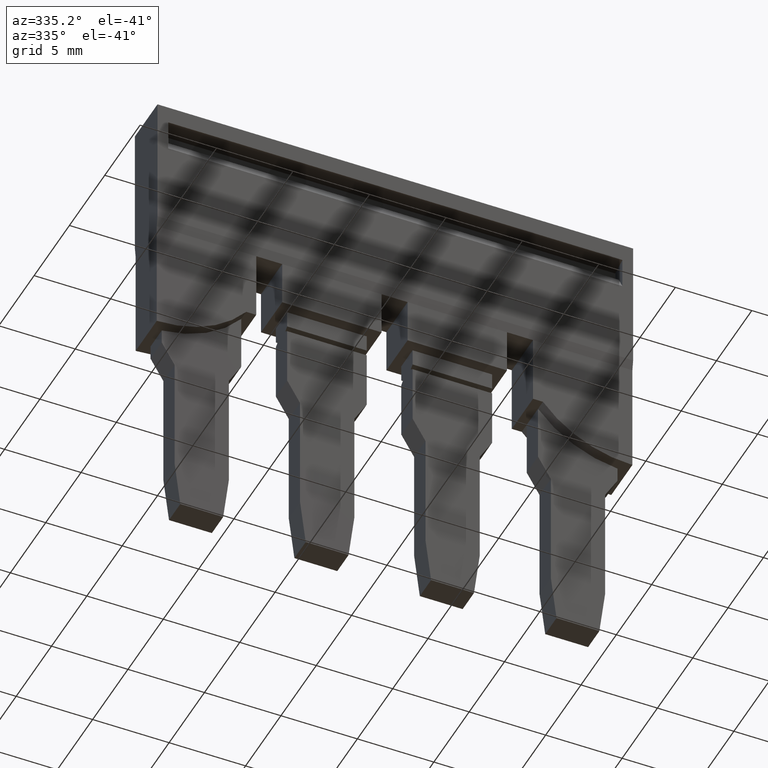
[diagram: clean part render]
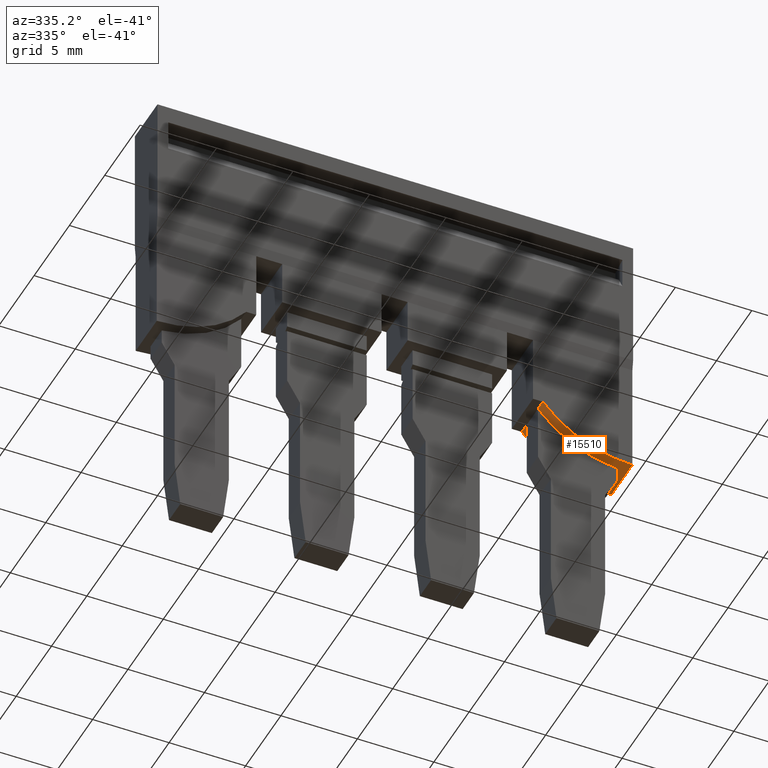
[diagram: same view with one face highlighted and labeled with its STEP entity id]
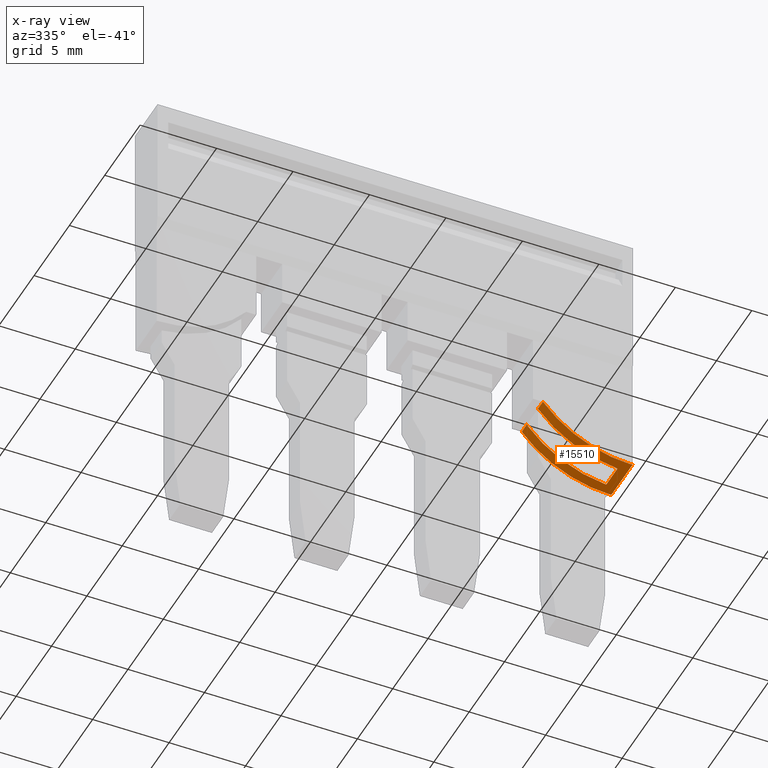
[diagram: x-ray of the same camera — body ghosted, the highlighted face saturated]
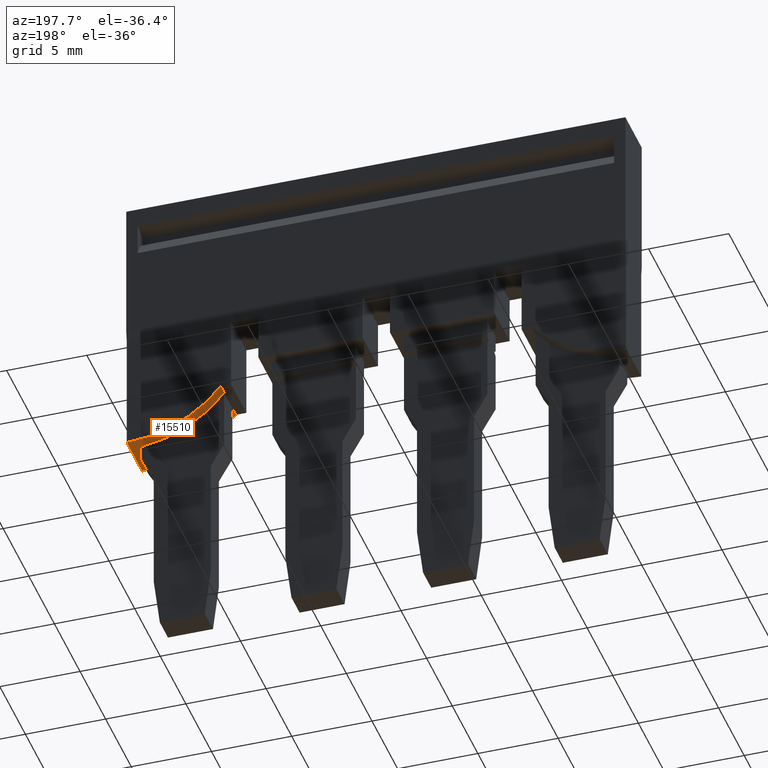
[diagram: same view with one face highlighted and labeled with its STEP entity id]
A machine part, auxiliary view. The second image highlights one B-rep face of the part: STEP entity #15510.
The next image is the same camera in x-ray: the body ghosted, the highlighted face saturated — about 0% of this face is hidden behind the body in this view.
A second angle (auxiliary view) of the same face is appended — the face is thin or edge-on in the first view.
In plain terms, the highlighted cylindrical surface (partial cylindrical patch) has radius 7.45 mm, axis along (-0, -1, -0).
Its self-contained STEP definition (entity closure, byte-faithful):
#2810=CARTESIAN_POINT('',(5.4855388607976,-22.9178098181019,
35.6099999999983));
#2820=VERTEX_POINT('',#2810);
#2870=CARTESIAN_POINT('',(5.4855388607976,-15.4678098181019,
35.6099999999983));
#2880=DIRECTION('',(1.,0.,3.08148791101958E-33));
#2890=DIRECTION('',(0.,1.,0.));
#2900=AXIS2_PLACEMENT_3D('',#2870,#2880,#2890);
#2910=CIRCLE('',#2900,7.45);
#2920=CARTESIAN_POINT('',(5.4855388607976,-20.0808348559681,
41.4599999999999));
#2930=VERTEX_POINT('',#2920);
#2940=EDGE_CURVE('',#2930,#2820,#2910,.T.);
#10540=CARTESIAN_POINT('',(2.4855388607976,-22.9178098181019,
35.6099999999983));
#10550=VERTEX_POINT('',#10540);
#10580=CARTESIAN_POINT('',(3.18553886080735,-22.9178098181019,
35.6099999999983));
#10590=DIRECTION('',(1.,0.,3.08148791101958E-33));
#10600=VECTOR('',#10590,1.);
#10610=LINE('',#10580,#10600);
#10620=EDGE_CURVE('',#10550,#2820,#10610,.T.);
#11510=CARTESIAN_POINT('',(2.4855388607976,-20.0808348559681,
41.4599999999999));
#11520=VERTEX_POINT('',#11510);
#11550=CARTESIAN_POINT('',(2.4855388607976,-15.4678098181019,
35.6099999999983));
#11560=DIRECTION('',(1.,0.,3.08148791101958E-33));
#11570=DIRECTION('',(0.,1.,0.));
#11580=AXIS2_PLACEMENT_3D('',#11550,#11560,#11570);
#11590=CIRCLE('',#11580,7.45);
#11600=EDGE_CURVE('',#11520,#10550,#11590,.T.);
#14440=CARTESIAN_POINT('',(4.78553886079777,-20.0808348559681,
41.4599999999955));
#14450=VERTEX_POINT('',#14440);
#14460=CARTESIAN_POINT('',(3.18553886079776,-20.0808348559681,
41.4599999999955));
#14470=VERTEX_POINT('',#14460);
#14500=CARTESIAN_POINT('',(3.18553886080735,-20.0808348559681,
41.4599999999999));
#14510=DIRECTION('',(1.,0.,3.08148791101958E-33));
#14520=VECTOR('',#14510,1.);
#14530=LINE('',#14500,#14520);
#14540=EDGE_CURVE('',#11520,#14470,#14530,.T.);
#14590=EDGE_CURVE('',#14450,#2930,#14530,.T.);
#15150=CARTESIAN_POINT('',(3.18553886080735,-15.4678098181019,
35.6099999999983));
#15160=DIRECTION('',(1.,0.,3.08148791101958E-33));
#15170=DIRECTION('',(0.,1.,0.));
#15180=AXIS2_PLACEMENT_3D('',#15150,#15160,#15170);
#15190=CYLINDRICAL_SURFACE('',#15180,7.45);
#15200=ORIENTED_EDGE('',*,*,#2940,.F.);
#15210=ORIENTED_EDGE('',*,*,#10620,.T.);
#15220=ORIENTED_EDGE('',*,*,#11600,.T.);
#15230=ORIENTED_EDGE('',*,*,#14540,.F.);
#15240=CARTESIAN_POINT('',(3.18553886079776,-15.4678098181019,
35.6099999999983));
#15250=DIRECTION('',(1.,0.,3.08148791101958E-33));
#15260=DIRECTION('',(0.,1.,0.));
#15270=AXIS2_PLACEMENT_3D('',#15240,#15250,#15260);
#15280=CIRCLE('',#15270,7.45);
#15290=CARTESIAN_POINT('',(3.18553886079776,-22.8893999442139,
36.2599999999955));
#15300=VERTEX_POINT('',#15290);
#15310=EDGE_CURVE('',#14470,#15300,#15280,.T.);
#15320=ORIENTED_EDGE('',*,*,#15310,.F.);
#15330=CARTESIAN_POINT('',(3.18553886080735,-22.8893999442139,
36.2599999999955));
#15340=DIRECTION('',(1.,0.,3.08148791101958E-33));
#15350=VECTOR('',#15340,1.);
#15360=LINE('',#15330,#15350);
#15370=CARTESIAN_POINT('',(4.78553886079778,-22.8893999442139,
36.2599999999955));
#15380=VERTEX_POINT('',#15370);
#15390=EDGE_CURVE('',#15300,#15380,#15360,.T.);
#15400=ORIENTED_EDGE('',*,*,#15390,.F.);
#15410=CARTESIAN_POINT('',(4.78553886079778,-15.4678098181019,
35.6099999999983));
#15420=DIRECTION('',(1.,0.,3.08148791101958E-33));
#15430=DIRECTION('',(0.,1.,0.));
#15440=AXIS2_PLACEMENT_3D('',#15410,#15420,#15430);
#15450=CIRCLE('',#15440,7.45);
#15460=EDGE_CURVE('',#14450,#15380,#15450,.T.);
#15470=ORIENTED_EDGE('',*,*,#15460,.T.);
#15480=ORIENTED_EDGE('',*,*,#14590,.F.);
#15490=EDGE_LOOP('',(#15480,#15470,#15400,#15320,#15230,#15220,#15210,
#15200));
#15500=FACE_OUTER_BOUND('',#15490,.T.);
#15510=ADVANCED_FACE('',(#15500),#15190,.T.);